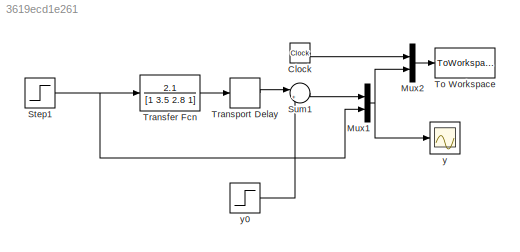
MODEL slx_3619ecd1e261
KIND model
CONFIG AbsTol = auto
CONFIG EnableMultiTasking = on
CONFIG FixedStep = 0.01
CONFIG MaxStep = auto
CONFIG MinStep = auto
CONFIG RelTol = 1e-3
CONFIG SampleTimeConstraint = Unconstrained
CONFIG SolverName = ode4
CONFIG StartTime = 0.0
CONFIG StopTime = 45
BLOCK [Clock] Clock
BLOCK [Mux] Mux1
  DisplayOption = bar
  Inputs = 2
BLOCK [Mux] Mux2
  DisplayOption = bar
  Inputs = 2
BLOCK [Step] Step1
  After = 2
  Before = -1
  SampleTime = 0
  Time = 0
BLOCK [Sum] Sum1
  Inputs = |++
BLOCK [ToWorkspace] To Workspace
  MaxDataPoints = inf
  SampleTime = -1
  VariableName = pch3
BLOCK [TransferFcn] Transfer Fcn
  Denominator = [1 3.5 2.8 1]
  Numerator = 2.1
BLOCK [TransportDelay] Transport Delay
  DelayTime = 0.3
BLOCK [Scope] y
  DataLoggingDecimateData = on
  DataLoggingDecimation = 1
  DataLoggingLimitDataPoints = on
  DataLoggingSaveFormat = Structure With Time
  DataLoggingVariableName = ScopeData2
  Floating = off
  GraphicalSettings = {"GraphicalSettings":{"LegacySettings":true,"Style":{"Style":{"MinimizeControls":"false","PlotType":"Auto"}}}}
  LayoutDimensionsString = [1 1]
  NumInputPorts = 1
  WasSavedAsWebScope = on
BLOCK [Step] y0
  After = 3
  SampleTime = 0
  Time = 0
LINE Clock:1 -> Mux2:1
NET Mux1:1 -> Mux2:2, y:1
LINE Mux2:1 -> To Workspace:1
NET Step1:1 -> Mux1:2, Transfer Fcn:1
LINE Sum1:1 -> Mux1:1
LINE Transfer Fcn:1 -> Transport Delay:1
LINE Transport Delay:1 -> Sum1:1
LINE y0:1 -> Sum1:2
note: NET lines group one-source signal fan-out (src -> all destinations, sorted); 1:1 wires keep LINE
